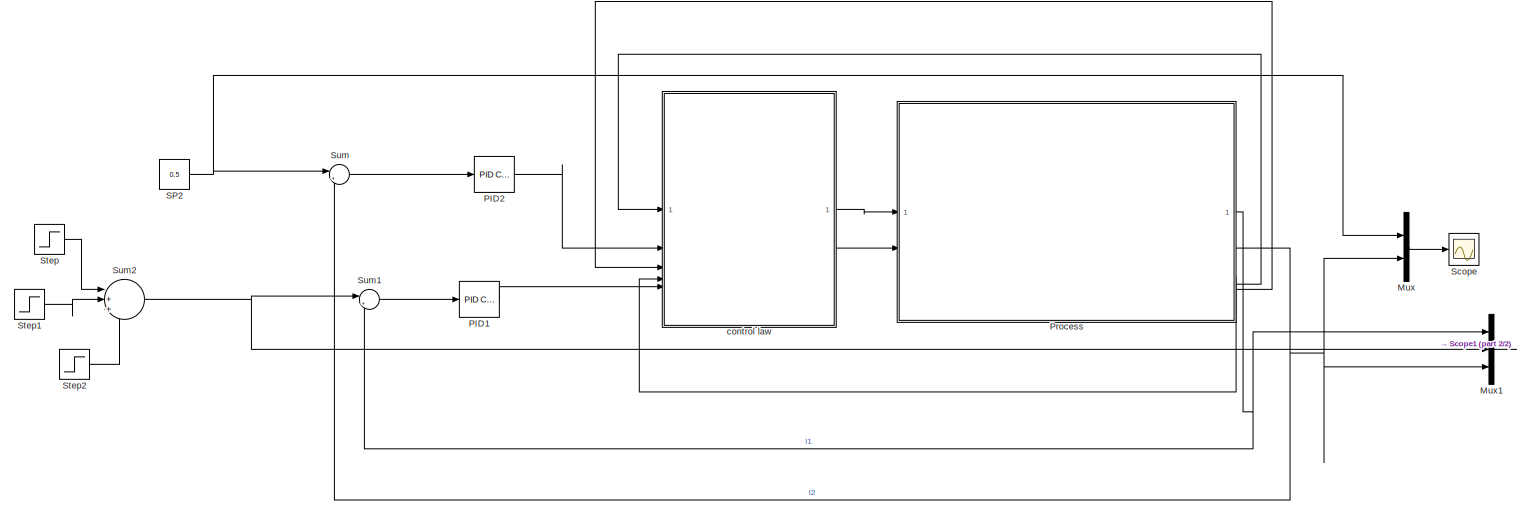
[diagram: root canvas - part 1/2, most of the canvas]
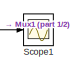
[diagram: root canvas - part 2/2, bottom right region]
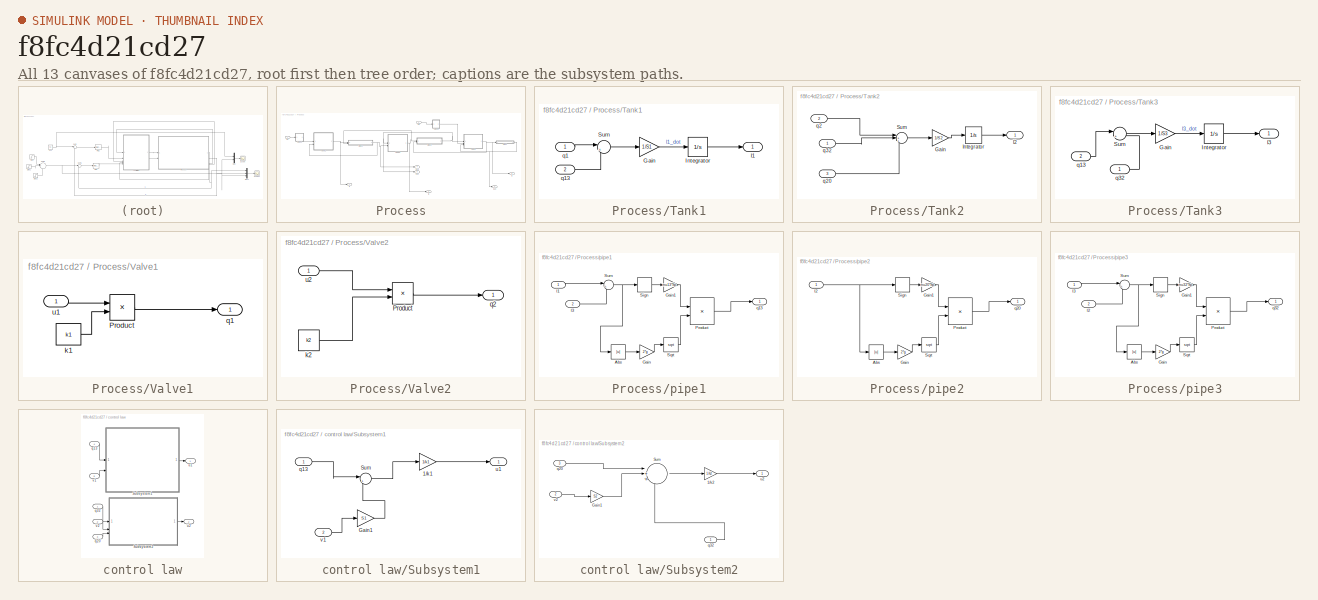
[diagram: thumbnail index - all 13 canvases of the model, root first then tree order]
MODEL slx_f8fc4d21cd27
KIND model
CONFIG AbsTol = auto
CONFIG EnableMultiTasking = off
CONFIG FixedStep = auto
CONFIG MaxStep = auto
CONFIG MinStep = auto
CONFIG RelTol = 1e-3
CONFIG SampleTimeConstraint = Unconstrained
CONFIG SolverName = FixedStepAuto
CONFIG StartTime = 0.0
CONFIG StopTime = 100
BLOCK [Mux] Mux
  DisplayOption = bar
  Inputs = 2
BLOCK [Mux] Mux1
  DisplayOption = bar
  Inputs = 3
BLOCK [Reference] PID1  REF=slpidlib/PID Controller
  LibrarySourceBlock = simulink/Continuous/PID Controller
  SourceBlock = slpidlib/PID Controller
  SourceType = PID 1dof
BLOCK [Reference] PID2  REF=slpidlib/PID Controller
  LibrarySourceBlock = simulink/Continuous/PID Controller
  SourceBlock = slpidlib/PID Controller
  SourceType = PID 1dof
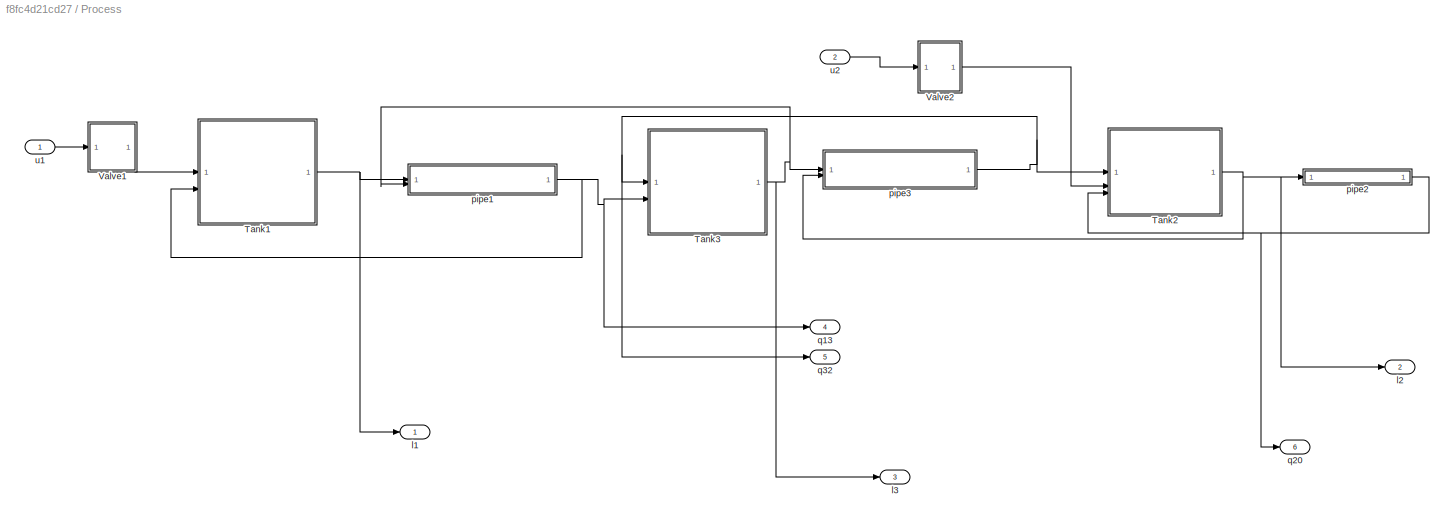
BLOCK [SubSystem] Process
BLOCK [SubSystem] Process/Tank1
BLOCK [Gain] Process/Tank1/Gain
  Gain = 1/S1
BLOCK [Integrator] Process/Tank1/Integrator
BLOCK [Sum] Process/Tank1/Sum
  Inputs = |+-
BLOCK [Outport] Process/Tank1/l1
BLOCK [Inport] Process/Tank1/q1
BLOCK [Inport] Process/Tank1/q13
  Port = 2
BLOCK [SubSystem] Process/Tank2
BLOCK [Gain] Process/Tank2/Gain
  Gain = 1/S2
BLOCK [Integrator] Process/Tank2/Integrator
BLOCK [Sum] Process/Tank2/Sum
  Inputs = |++-
BLOCK [Outport] Process/Tank2/l2
BLOCK [Inport] Process/Tank2/q2
  Port = 2
BLOCK [Inport] Process/Tank2/q20
  Port = 3
BLOCK [Inport] Process/Tank2/q32
BLOCK [SubSystem] Process/Tank3
BLOCK [Gain] Process/Tank3/Gain
  Gain = 1/S3
BLOCK [Integrator] Process/Tank3/Integrator
BLOCK [Sum] Process/Tank3/Sum
  Inputs = |+-
BLOCK [Outport] Process/Tank3/l3
BLOCK [Inport] Process/Tank3/q13
  Port = 2
BLOCK [Inport] Process/Tank3/q32
BLOCK [SubSystem] Process/Valve1
BLOCK [Product] Process/Valve1/Product
BLOCK [Constant] Process/Valve1/k1
  Value = k1
BLOCK [Outport] Process/Valve1/q1
BLOCK [Inport] Process/Valve1/u1
BLOCK [SubSystem] Process/Valve2
BLOCK [Product] Process/Valve2/Product
BLOCK [Constant] Process/Valve2/k2
  Value = k2
BLOCK [Outport] Process/Valve2/q2
BLOCK [Inport] Process/Valve2/u2
BLOCK [Outport] Process/l1
BLOCK [Outport] Process/l2
  Port = 2
BLOCK [Outport] Process/l3
  Port = 3
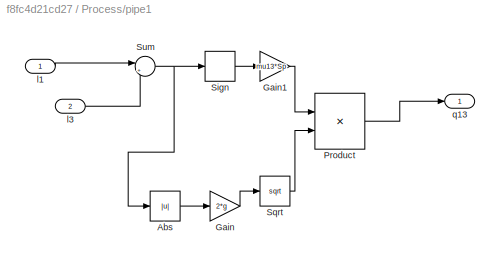
BLOCK [SubSystem] Process/pipe1
BLOCK [Abs] Process/pipe1/Abs
  SaturateOnIntegerOverflow = off
BLOCK [Gain] Process/pipe1/Gain
  Gain = 2*g
BLOCK [Gain] Process/pipe1/Gain1
  Gain = mu13*Sp
BLOCK [Product] Process/pipe1/Product
BLOCK [Signum] Process/pipe1/Sign
BLOCK [Sqrt] Process/pipe1/Sqrt
BLOCK [Sum] Process/pipe1/Sum
  Inputs = |+-
BLOCK [Inport] Process/pipe1/l1
BLOCK [Inport] Process/pipe1/l3
  Port = 2
BLOCK [Outport] Process/pipe1/q13
BLOCK [SubSystem] Process/pipe2
BLOCK [Abs] Process/pipe2/Abs
  SaturateOnIntegerOverflow = off
BLOCK [Gain] Process/pipe2/Gain
  Gain = 2*g
BLOCK [Gain] Process/pipe2/Gain1
  Gain = mu20*Sp
BLOCK [Product] Process/pipe2/Product
BLOCK [Signum] Process/pipe2/Sign
BLOCK [Sqrt] Process/pipe2/Sqrt
BLOCK [Inport] Process/pipe2/l2
BLOCK [Outport] Process/pipe2/q20
BLOCK [SubSystem] Process/pipe3
BLOCK [Abs] Process/pipe3/Abs
  SaturateOnIntegerOverflow = off
BLOCK [Gain] Process/pipe3/Gain
  Gain = 2*g
BLOCK [Gain] Process/pipe3/Gain1
  Gain = mu32*Sp
BLOCK [Product] Process/pipe3/Product
BLOCK [Signum] Process/pipe3/Sign
BLOCK [Sqrt] Process/pipe3/Sqrt
BLOCK [Sum] Process/pipe3/Sum
  Inputs = |+-
BLOCK [Inport] Process/pipe3/l2
  Port = 2
BLOCK [Inport] Process/pipe3/l3
BLOCK [Outport] Process/pipe3/q32
BLOCK [Outport] Process/q13
  Port = 4
BLOCK [Outport] Process/q20
  Port = 6
BLOCK [Outport] Process/q32
  Port = 5
BLOCK [Inport] Process/u1
BLOCK [Inport] Process/u2
  Port = 2
BLOCK [Constant] SP2
  Value = 0.5
BLOCK [Scope] Scope
  Floating = off
  NumInputPorts = 1
  ScopeSpecificationString = Simulink.scopes.TimeScopeBlockCfg('CurrentConfiguration', extmgr.ConfigurationSet(extmgr.Configuration('Core','General UI',true),extmgr.Configuration('Core','Source UI',true),extmgr.Configuration('Sources','WiredSimulink',true),extmgr.Configuration('Visuals','Time Domain',true,'SerializedDisplays',{struct('MinYLimReal','-0.08115','MaxYLimReal','0.73037','YLabelReal','','MinYLimMag','0.00000','MaxY...<+1638ch>
BLOCK [Scope] Scope1
  Floating = off
  NumInputPorts = 1
  ScopeSpecificationString = Simulink.scopes.TimeScopeBlockCfg('CurrentConfiguration', extmgr.ConfigurationSet(extmgr.Configuration('Core','General UI',true),extmgr.Configuration('Core','Source UI',true),extmgr.Configuration('Sources','WiredSimulink',true,'DataLoggingVariableName','ScopeData1'),extmgr.Configuration('Visuals','Time Domain',true,'SerializedDisplays',{struct('MinYLimReal','-0.09869','MaxYLimReal','0.88822','YLab...<+1789ch>
BLOCK [Step] Step
  After = 0.4
  SampleTime = 0.001
  Time = 30
BLOCK [Step] Step1
  After = 0.3
  SampleTime = 0
  Time = 60
BLOCK [Step] Step2
  After = 0.45
  SampleTime = 0
  Time = 90
BLOCK [Sum] Sum
  Inputs = |+-
BLOCK [Sum] Sum1
  Inputs = |+-
BLOCK [Sum] Sum2
  Inputs = |++-
BLOCK [SubSystem] control law
BLOCK [SubSystem] control law/Subsystem1
BLOCK [Gain] control law/Subsystem1/1//k1
  Gain = 1/k1
BLOCK [Gain] control law/Subsystem1/Gain1
  Gain = S1
BLOCK [Sum] control law/Subsystem1/Sum
  Inputs = |++
BLOCK [Inport] control law/Subsystem1/q13
BLOCK [Outport] control law/Subsystem1/u1
BLOCK [Inport] control law/Subsystem1/v1
  Port = 2
BLOCK [SubSystem] control law/Subsystem2
BLOCK [Gain] control law/Subsystem2/1//k2
  Gain = 1/k2
BLOCK [Gain] control law/Subsystem2/Gain1
  Gain = S2
BLOCK [Sum] control law/Subsystem2/Sum
  Inputs = |++-
BLOCK [Inport] control law/Subsystem2/q20
  Port = 3
BLOCK [Inport] control law/Subsystem2/q32
BLOCK [Outport] control law/Subsystem2/u2
BLOCK [Inport] control law/Subsystem2/v2
  Port = 2
BLOCK [Inport] control law/q13
  Port = 4
BLOCK [Inport] control law/q20
  Port = 3
BLOCK [Inport] control law/q32
BLOCK [Outport] control law/u1
BLOCK [Outport] control law/u2
  Port = 2
BLOCK [Inport] control law/v1
  Port = 5
BLOCK [Inport] control law/v2
  Port = 2
LINE Mux1:1 -> Scope1:1
LINE Mux:1 -> Scope:1
LINE PID1:1 -> control law:5
LINE PID2:1 -> control law:2
LINE Process/Tank1/Gain:1 -> Process/Tank1/Integrator:1
LINE Process/Tank1/Integrator:1 -> Process/Tank1/l1:1
LINE Process/Tank1/Sum:1 -> Process/Tank1/Gain:1
LINE Process/Tank1/q13:1 -> Process/Tank1/Sum:2
LINE Process/Tank1/q1:1 -> Process/Tank1/Sum:1
NET Process/Tank1:1 -> Process/l1:1, Process/pipe1:1
LINE Process/Tank2/Gain:1 -> Process/Tank2/Integrator:1
LINE Process/Tank2/Integrator:1 -> Process/Tank2/l2:1
LINE Process/Tank2/Sum:1 -> Process/Tank2/Gain:1
LINE Process/Tank2/q20:1 -> Process/Tank2/Sum:3
LINE Process/Tank2/q2:1 -> Process/Tank2/Sum:1
LINE Process/Tank2/q32:1 -> Process/Tank2/Sum:2
NET Process/Tank2:1 -> Process/l2:1, Process/pipe2:1, Process/pipe3:2
LINE Process/Tank3/Gain:1 -> Process/Tank3/Integrator:1
LINE Process/Tank3/Integrator:1 -> Process/Tank3/l3:1
LINE Process/Tank3/Sum:1 -> Process/Tank3/Gain:1
LINE Process/Tank3/q13:1 -> Process/Tank3/Sum:1
LINE Process/Tank3/q32:1 -> Process/Tank3/Sum:2
NET Process/Tank3:1 -> Process/l3:1, Process/pipe1:2, Process/pipe3:1
LINE Process/Valve1/Product:1 -> Process/Valve1/q1:1
LINE Process/Valve1/k1:1 -> Process/Valve1/Product:2
LINE Process/Valve1/u1:1 -> Process/Valve1/Product:1
LINE Process/Valve1:1 -> Process/Tank1:1
LINE Process/Valve2/Product:1 -> Process/Valve2/q2:1
LINE Process/Valve2/k2:1 -> Process/Valve2/Product:2
LINE Process/Valve2/u2:1 -> Process/Valve2/Product:1
LINE Process/Valve2:1 -> Process/Tank2:2
LINE Process/pipe1/Abs:1 -> Process/pipe1/Gain:1
LINE Process/pipe1/Gain1:1 -> Process/pipe1/Product:1
LINE Process/pipe1/Gain:1 -> Process/pipe1/Sqrt:1
LINE Process/pipe1/Product:1 -> Process/pipe1/q13:1
LINE Process/pipe1/Sign:1 -> Process/pipe1/Gain1:1
LINE Process/pipe1/Sqrt:1 -> Process/pipe1/Product:2
NET Process/pipe1/Sum:1 -> Process/pipe1/Abs:1, Process/pipe1/Sign:1
LINE Process/pipe1/l1:1 -> Process/pipe1/Sum:1
LINE Process/pipe1/l3:1 -> Process/pipe1/Sum:2
NET Process/pipe1:1 -> Process/Tank1:2, Process/Tank3:2, Process/q13:1
LINE Process/pipe2/Abs:1 -> Process/pipe2/Gain:1
LINE Process/pipe2/Gain1:1 -> Process/pipe2/Product:1
LINE Process/pipe2/Gain:1 -> Process/pipe2/Sqrt:1
LINE Process/pipe2/Product:1 -> Process/pipe2/q20:1
LINE Process/pipe2/Sign:1 -> Process/pipe2/Gain1:1
LINE Process/pipe2/Sqrt:1 -> Process/pipe2/Product:2
NET Process/pipe2/l2:1 -> Process/pipe2/Abs:1, Process/pipe2/Sign:1
NET Process/pipe2:1 -> Process/Tank2:3, Process/q20:1
LINE Process/pipe3/Abs:1 -> Process/pipe3/Gain:1
LINE Process/pipe3/Gain1:1 -> Process/pipe3/Product:1
LINE Process/pipe3/Gain:1 -> Process/pipe3/Sqrt:1
LINE Process/pipe3/Product:1 -> Process/pipe3/q32:1
LINE Process/pipe3/Sign:1 -> Process/pipe3/Gain1:1
LINE Process/pipe3/Sqrt:1 -> Process/pipe3/Product:2
NET Process/pipe3/Sum:1 -> Process/pipe3/Abs:1, Process/pipe3/Sign:1
LINE Process/pipe3/l2:1 -> Process/pipe3/Sum:2
LINE Process/pipe3/l3:1 -> Process/pipe3/Sum:1
NET Process/pipe3:1 -> Process/Tank2:1, Process/Tank3:1, Process/q32:1
LINE Process/u1:1 -> Process/Valve1:1
LINE Process/u2:1 -> Process/Valve2:1
NET Process:1 -> Mux1:1, Sum1:2
NET Process:2 -> Mux1:3, Mux:2, Sum:2
LINE Process:4 -> control law:4
LINE Process:5 -> control law:1
LINE Process:6 -> control law:3
NET SP2:1 -> Mux:1, Sum:1
LINE Step1:1 -> Sum2:2
LINE Step2:1 -> Sum2:3
LINE Step:1 -> Sum2:1
LINE Sum1:1 -> PID1:1
NET Sum2:1 -> Mux1:2, Sum1:1
LINE Sum:1 -> PID2:1
LINE control law/Subsystem1/1//k1:1 -> control law/Subsystem1/u1:1
LINE control law/Subsystem1/Gain1:1 -> control law/Subsystem1/Sum:2
LINE control law/Subsystem1/Sum:1 -> control law/Subsystem1/1//k1:1
LINE control law/Subsystem1/q13:1 -> control law/Subsystem1/Sum:1
LINE control law/Subsystem1/v1:1 -> control law/Subsystem1/Gain1:1
LINE control law/Subsystem1:1 -> control law/u1:1
LINE control law/Subsystem2/1//k2:1 -> control law/Subsystem2/u2:1
LINE control law/Subsystem2/Gain1:1 -> control law/Subsystem2/Sum:2
LINE control law/Subsystem2/Sum:1 -> control law/Subsystem2/1//k2:1
LINE control law/Subsystem2/q20:1 -> control law/Subsystem2/Sum:1
LINE control law/Subsystem2/q32:1 -> control law/Subsystem2/Sum:3
LINE control law/Subsystem2/v2:1 -> control law/Subsystem2/Gain1:1
LINE control law/Subsystem2:1 -> control law/u2:1
LINE control law/q13:1 -> control law/Subsystem1:1
LINE control law/q20:1 -> control law/Subsystem2:3
LINE control law/q32:1 -> control law/Subsystem2:1
LINE control law/v1:1 -> control law/Subsystem1:2
LINE control law/v2:1 -> control law/Subsystem2:2
LINE control law:1 -> Process:1
LINE control law:2 -> Process:2
note: NET lines group one-source signal fan-out (src -> all destinations, sorted); 1:1 wires keep LINE
